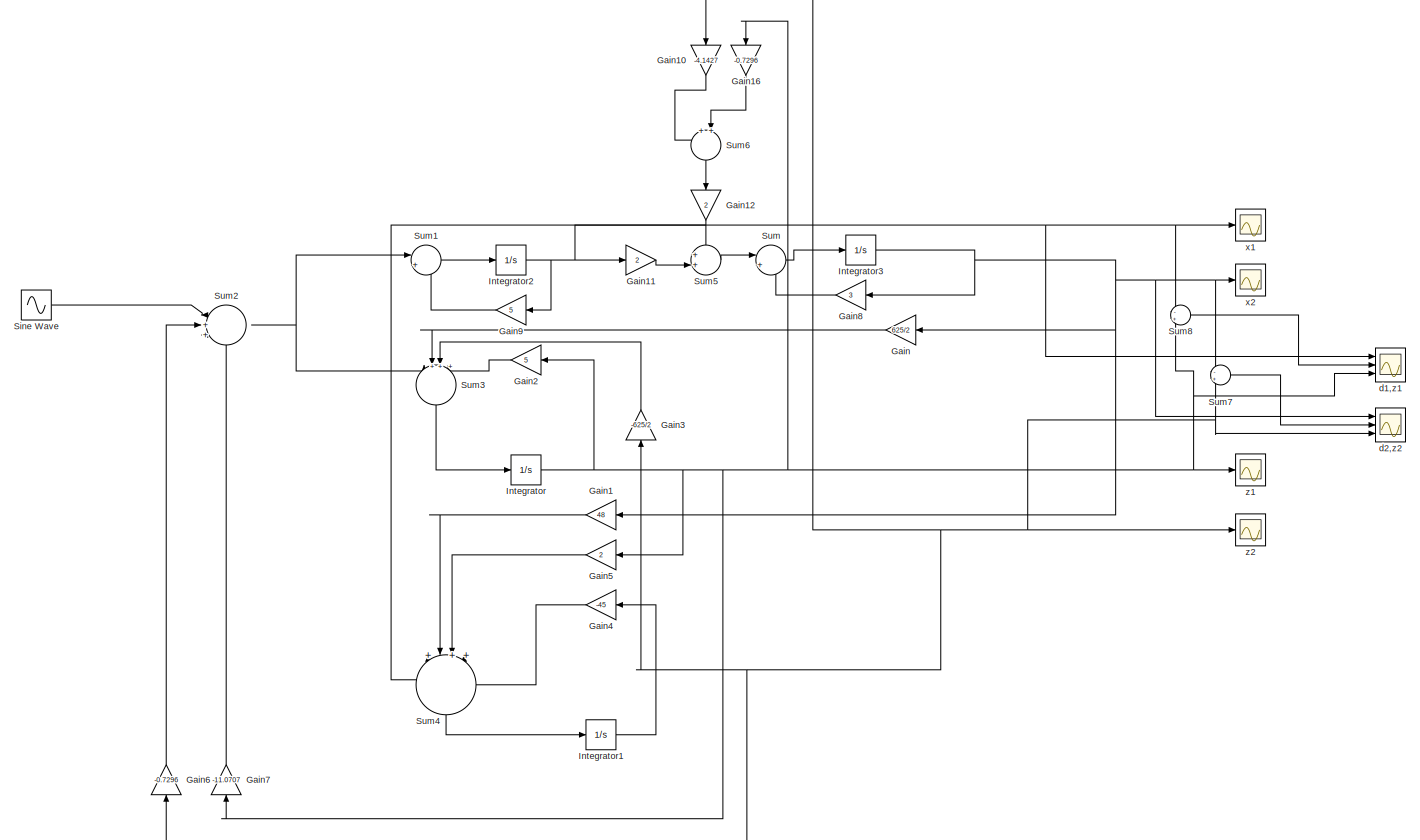
[diagram: root canvas - part 1/1, most of the canvas]
MODEL slx_a0920320d146
KIND model
CONFIG AbsTol = auto
CONFIG EnableMultiTasking = off
CONFIG FixedStep = auto
CONFIG MaxStep = auto
CONFIG MinStep = auto
CONFIG RelTol = 1e-3
CONFIG SampleTimeConstraint = Unconstrained
CONFIG SolverName = VariableStepAuto
CONFIG StartTime = 0.0
CONFIG StopTime = 250.0
BLOCK [Gain] Gain
  Gain = 625/2
  NameLocation = top
BLOCK [Gain] Gain1
  Gain = 48
  NameLocation = top
BLOCK [Gain] Gain10
  Gain = -4.1427
  NameLocation = left
BLOCK [Gain] Gain11
  Gain = 2
BLOCK [Gain] Gain12
  Gain = 2
  NameLocation = left
BLOCK [Gain] Gain16
  Gain = -0.7296
  NameLocation = left
BLOCK [Gain] Gain2
  Gain = 5
  NameLocation = top
BLOCK [Gain] Gain3
  Gain = -625/2
  NameLocation = right
BLOCK [Gain] Gain4
  Gain = -45
  NameLocation = top
BLOCK [Gain] Gain5
  Gain = 2
  NameLocation = top
BLOCK [Gain] Gain6
  Gain = -0.7296
  NameLocation = right
BLOCK [Gain] Gain7
  Gain = -11.0707
  NameLocation = right
BLOCK [Gain] Gain8
  Gain = 3
  NameLocation = top
BLOCK [Gain] Gain9
  Gain = 5
  NameLocation = top
BLOCK [Integrator] Integrator
  InitialCondition = 10
  Ports = [1, 1]
BLOCK [Integrator] Integrator1
  InitialCondition = 19
  Ports = [1, 1]
BLOCK [Integrator] Integrator2
  InitialCondition = -30
  Ports = [1, 1]
  ZeroCross = off
BLOCK [Integrator] Integrator3
  InitialCondition = 25
  Ports = [1, 1]
  ZeroCross = off
BLOCK [Sin] Sine Wave
  Amplitude = 10
  Frequency = 0.1
  Ports = [0, 1]
  SampleTime = 0
BLOCK [Sum] Sum
  Inputs = |++
  Ports = [2, 1]
BLOCK [Sum] Sum1
  Inputs = |++
  Ports = [2, 1]
BLOCK [Sum] Sum2
  Inputs = |+++
  Ports = [3, 1]
BLOCK [Sum] Sum3
  Inputs = |++||++|
  NameLocation = left
  Ports = [4, 1]
BLOCK [Sum] Sum4
  Inputs = +|+|+|+
  NameLocation = left
  Ports = [4, 1]
BLOCK [Sum] Sum5
  Inputs = ++|
  Ports = [2, 1]
BLOCK [Sum] Sum6
  Inputs = ++|
  NameLocation = left
  Ports = [2, 1]
BLOCK [Sum] Sum7
  Inputs = -+
  Ports = [2, 1]
BLOCK [Sum] Sum8
  Inputs = -+
  Ports = [2, 1]
BLOCK [Scope] d1,z1
  Floating = off
  NumInputPorts = 3
  Ports = [3]
  ScopeSpecificationString = Simulink.scopes.TimeScopeBlockCfg('CurrentConfiguration', extmgr.ConfigurationSet(extmgr.Configuration('Core','General UI',true),extmgr.Configuration('Core','Source UI',true),extmgr.Configuration('Sources','WiredSimulink',true,'DataLoggingVariableName','ScopeData1'),extmgr.Configuration('Visuals','Time Domain',true,'SerializedDisplays',{struct('MinYLimReal','-2.78093','MaxYLimReal','3.66606','YLab...<+1489ch>
BLOCK [Scope] d2,z2
  Floating = off
  NumInputPorts = 3
  Ports = [3]
  ScopeSpecificationString = Simulink.scopes.TimeScopeBlockCfg('CurrentConfiguration', extmgr.ConfigurationSet(extmgr.Configuration('Core','General UI',true),extmgr.Configuration('Core','Source UI',true),extmgr.Configuration('Sources','WiredSimulink',true,'DataLoggingVariableName','ScopeData1'),extmgr.Configuration('Visuals','Time Domain',true,'SerializedDisplays',{struct('MinYLimReal','-0.35007','MaxYLimReal','0.37467','YLab...<+1464ch>
BLOCK [Scope] x1
  Floating = off
  NumInputPorts = 1
  Ports = [1]
  ScopeSpecificationString = Simulink.scopes.TimeScopeBlockCfg('CurrentConfiguration', extmgr.ConfigurationSet(extmgr.Configuration('Core','General UI',true),extmgr.Configuration('Core','Source UI',true),extmgr.Configuration('Sources','WiredSimulink',true,'DataLoggingVariableName','ScopeData1'),extmgr.Configuration('Visuals','Time Domain',true,'SerializedDisplays',{struct('MinYLimReal','-7.52736','MaxYLimReal','4.6602','YLabe...<+1387ch>
BLOCK [Scope] x2
  Floating = off
  NumInputPorts = 1
  Ports = [1]
  ScopeSpecificationString = Simulink.scopes.TimeScopeBlockCfg('CurrentConfiguration', extmgr.ConfigurationSet(extmgr.Configuration('Core','General UI',true),extmgr.Configuration('Core','Source UI',true),extmgr.Configuration('Sources','WiredSimulink',true,'DataLoggingVariableName','ScopeData2'),extmgr.Configuration('Visuals','Time Domain',true,'SerializedDisplays',{struct('MinYLimReal','-8.25964','MaxYLimReal','28.69552','YLa...<+1374ch>
BLOCK [Scope] z1
  Floating = off
  NumInputPorts = 1
  Ports = [1]
  ScopeSpecificationString = Simulink.scopes.TimeScopeBlockCfg('CurrentConfiguration', extmgr.ConfigurationSet(extmgr.Configuration('Core','General UI',true),extmgr.Configuration('Core','Source UI',true),extmgr.Configuration('Sources','WiredSimulink',true,'DataLoggingVariableName','ScopeData2'),extmgr.Configuration('Visuals','Time Domain',true,'SerializedDisplays',{struct('MinYLimReal','-53.52509','MaxYLimReal','35.78881','YL...<+1450ch>
BLOCK [Scope] z2
  Floating = off
  NumInputPorts = 1
  Ports = [1]
  ScopeSpecificationString = Simulink.scopes.TimeScopeBlockCfg('CurrentConfiguration', extmgr.ConfigurationSet(extmgr.Configuration('Core','General UI',true),extmgr.Configuration('Core','Source UI',true),extmgr.Configuration('Sources','WiredSimulink',true,'DataLoggingVariableName','ScopeData1'),extmgr.Configuration('Visuals','Time Domain',true,'SerializedDisplays',{struct('MinYLimReal','-7.44906','MaxYLimReal','22.98587','YLa...<+1374ch>
LINE Gain10:1 -> Sum6:1
LINE Gain11:1 -> Sum5:2
NET Gain12:1 -> Sum4:1, Sum5:1
LINE Gain16:1 -> Sum6:2
LINE Gain1:1 -> Sum4:2
LINE Gain2:1 -> Sum3:4
LINE Gain3:1 -> Sum3:3
LINE Gain4:1 -> Sum4:4
LINE Gain5:1 -> Sum4:3
LINE Gain6:1 -> Sum2:2
LINE Gain7:1 -> Sum2:3
LINE Gain8:1 -> Sum:2
LINE Gain9:1 -> Sum1:2
LINE Gain:1 -> Sum3:2
NET Integrator1:1 -> Gain10:1, Gain3:1, Gain4:1, Gain6:1, Sum7:2, d2,z2:3, z2:1
NET Integrator2:1 -> Gain11:1, Gain9:1, Sum8:1, d1,z1:1, x1:1
NET Integrator3:1 -> Gain1:1, Gain8:1, Gain:1, Sum7:1, d2,z2:1, x2:1
NET Integrator:1 -> Gain16:1, Gain2:1, Gain5:1, Gain7:1, Sum8:2, d1,z1:3, z1:1
LINE Sine Wave:1 -> Sum2:1
LINE Sum1:1 -> Integrator2:1
NET Sum2:1 -> Sum1:1, Sum3:1
LINE Sum3:1 -> Integrator:1
LINE Sum4:1 -> Integrator1:1
LINE Sum5:1 -> Sum:1
LINE Sum6:1 -> Gain12:1
LINE Sum7:1 -> d2,z2:2
LINE Sum8:1 -> d1,z1:2
LINE Sum:1 -> Integrator3:1
note: NET lines group one-source signal fan-out (src -> all destinations, sorted); 1:1 wires keep LINE
